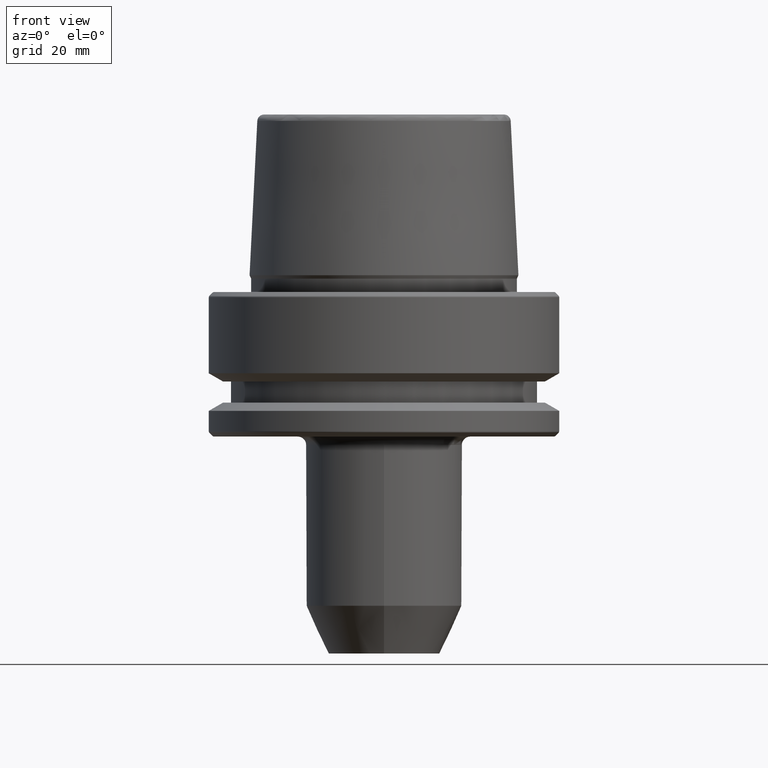
[diagram: clean part render]
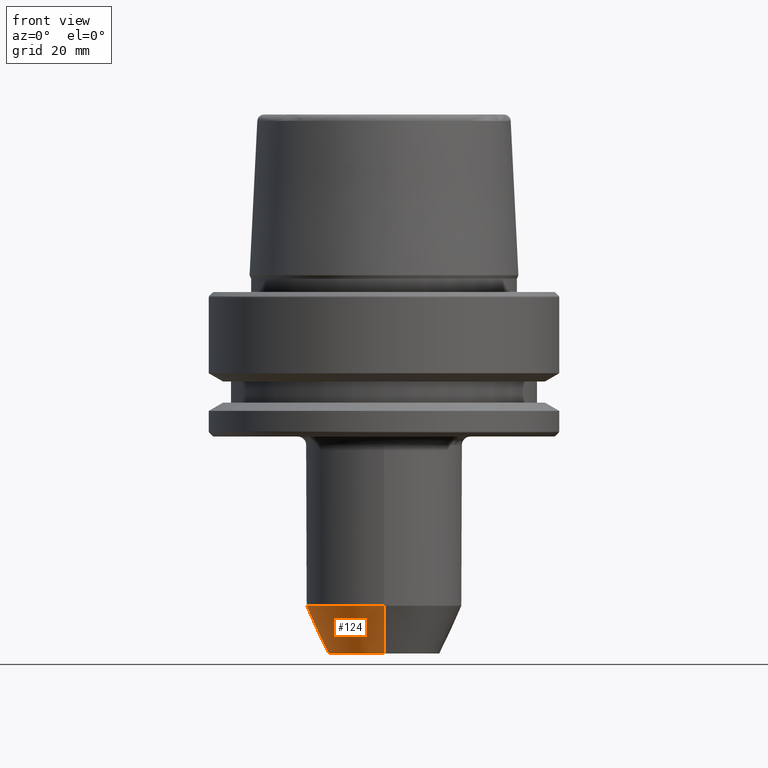
[diagram: same view with one face highlighted and labeled with its STEP entity id]
A machine part, front view. The second image highlights one B-rep face of the part: STEP entity #124.
In plain terms, the highlighted conical surface has half-angle 25 deg.
Its self-contained STEP definition (entity closure, byte-faithful):
#39 = DIRECTION ( 'NONE',  ( -0.0000000000000000000, -1.099041999234804300E-016, -1.000000000000000000 ) ) ;
#42 = DIRECTION ( 'NONE',  ( 0.0000000000000000000, 1.000000000000000000, 0.0000000000000000000 ) ) ;
#64 = CARTESIAN_POINT ( 'NONE',  ( 1.469576158976824500E-015, 10.00000000000000000, -65.00000000000000000 ) ) ;
#68 = LINE ( 'NONE', #708, #1264 ) ;
#86 = VERTEX_POINT ( 'NONE', #93 ) ;
#93 = CARTESIAN_POINT ( 'NONE',  ( 0.0000000000000000000, -10.00000000000000700, -65.00000000000000000 ) ) ;
#124 = ADVANCED_FACE ( 'NONE', ( #135 ), #151, .T. ) ;
#135 = FACE_OUTER_BOUND ( 'NONE', #484, .T. ) ;
#151 = CONICAL_SURFACE ( 'NONE', #1045, 10.00000000000000400, 0.4363323129985798300 ) ;
#222 = VERTEX_POINT ( 'NONE', #451 ) ;
#236 = DIRECTION ( 'NONE',  ( 0.0000000000000000000, -0.4226182617406970000, 0.9063077870366510500 ) ) ;
#238 = VERTEX_POINT ( 'NONE', #1190 ) ;
#246 = AXIS2_PLACEMENT_3D ( 'NONE', #1218, #635, #42 ) ;
#247 = LINE ( 'NONE', #435, #998 ) ;
#249 = DIRECTION ( 'NONE',  ( 0.0000000000000000000, 1.000000000000000000, 0.0000000000000000000 ) ) ;
#254 = DIRECTION ( 'NONE',  ( 0.0000000000000000000, -1.000000000000000000, 0.0000000000000000000 ) ) ;
#270 = EDGE_CURVE ( 'NONE', #222, #238, #686, .T. ) ;
#364 = VERTEX_POINT ( 'NONE', #64 ) ;
#379 = ORIENTED_EDGE ( 'NONE', *, *, #449, .F. ) ;
#435 = CARTESIAN_POINT ( 'NONE',  ( 0.0000000000000000000, -10.00000000000000700, -65.00000000000000000 ) ) ;
#449 = EDGE_CURVE ( 'NONE', #364, #238, #68, .T. ) ;
#451 = CARTESIAN_POINT ( 'NONE',  ( 0.0000000000000000000, -14.00000000000000900, -56.42197231796170300 ) ) ;
#484 = EDGE_LOOP ( 'NONE', ( #379, #1173, #713, #1090 ) ) ;
#569 = AXIS2_PLACEMENT_3D ( 'NONE', #1029, #39, #249 ) ;
#615 = DIRECTION ( 'NONE',  ( 0.0000000000000000000, 1.099041999234804300E-016, 1.000000000000000000 ) ) ;
#635 = DIRECTION ( 'NONE',  ( -0.0000000000000000000, -1.099041999234804300E-016, -1.000000000000000000 ) ) ;
#686 = CIRCLE ( 'NONE', #569, 14.00000000000000400 ) ;
#708 = CARTESIAN_POINT ( 'NONE',  ( 1.224646799147353700E-015, 10.00000000000000000, -65.00000000000000000 ) ) ;
#713 = ORIENTED_EDGE ( 'NONE', *, *, #771, .T. ) ;
#771 = EDGE_CURVE ( 'NONE', #86, #222, #247, .T. ) ;
#817 = DIRECTION ( 'NONE',  ( 5.175581015019630400E-017, 0.4226182617406972200, 0.9063077870366510500 ) ) ;
#850 = CARTESIAN_POINT ( 'NONE',  ( 0.0000000000000000000, -4.286263797015735700E-015, -65.00000000000000000 ) ) ;
#998 = VECTOR ( 'NONE', #236, 1000.000000000000200 ) ;
#1029 = CARTESIAN_POINT ( 'NONE',  ( 0.0000000000000000000, -3.343502527699849600E-015, -56.42197231796170300 ) ) ;
#1045 = AXIS2_PLACEMENT_3D ( 'NONE', #850, #615, #254 ) ;
#1090 = ORIENTED_EDGE ( 'NONE', *, *, #270, .T. ) ;
#1156 = CIRCLE ( 'NONE', #246, 10.00000000000000400 ) ;
#1173 = ORIENTED_EDGE ( 'NONE', *, *, #1216, .F. ) ;
#1190 = CARTESIAN_POINT ( 'NONE',  ( 1.714505518806294800E-015, 14.00000000000000200, -56.42197231796170300 ) ) ;
#1216 = EDGE_CURVE ( 'NONE', #86, #364, #1156, .T. ) ;
#1218 = CARTESIAN_POINT ( 'NONE',  ( 0.0000000000000000000, -4.286263797015735700E-015, -65.00000000000000000 ) ) ;
#1264 = VECTOR ( 'NONE', #817, 1000.000000000000000 ) ;